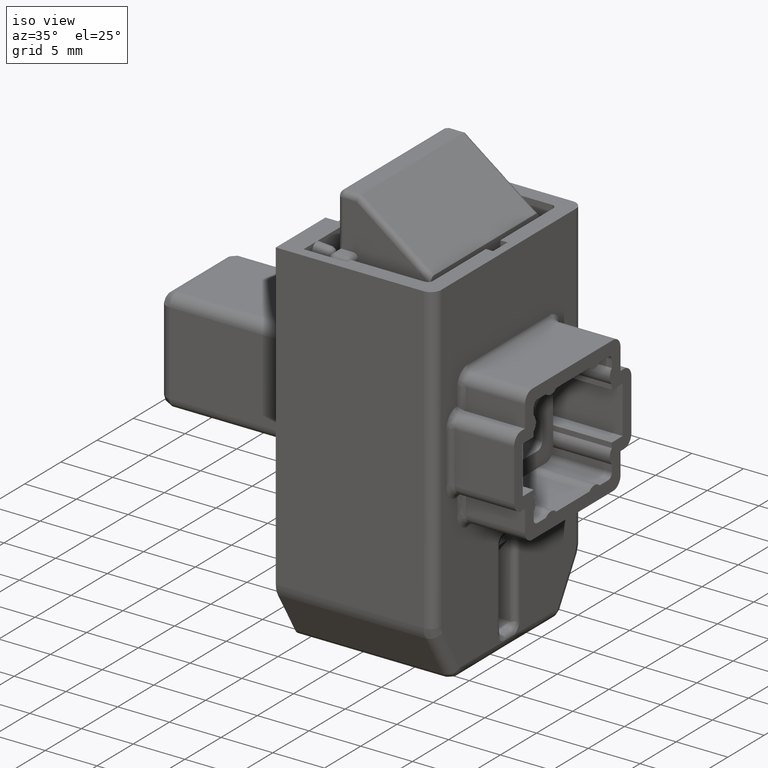
[diagram: clean part render]
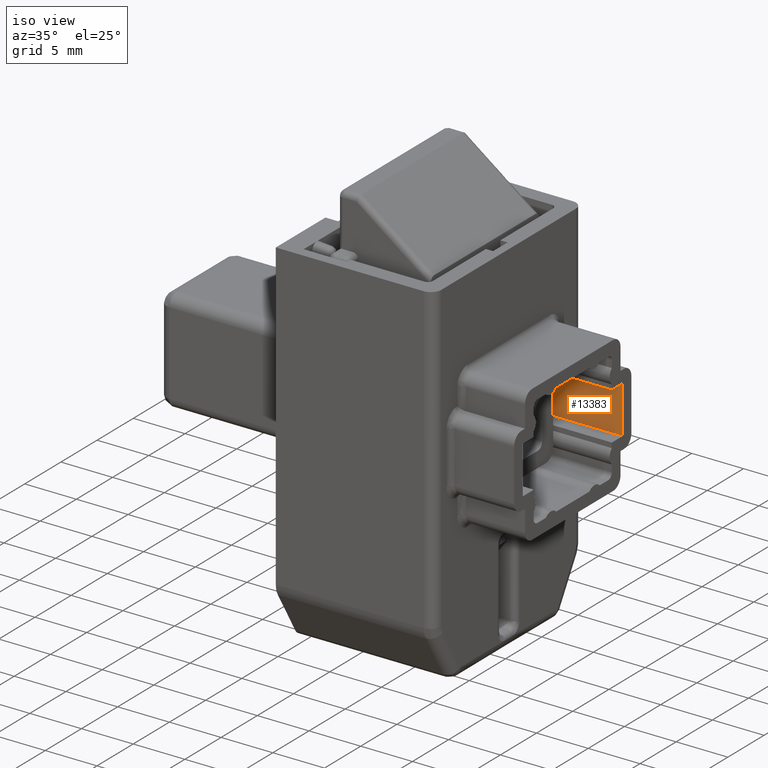
[diagram: same view with one face highlighted and labeled with its STEP entity id]
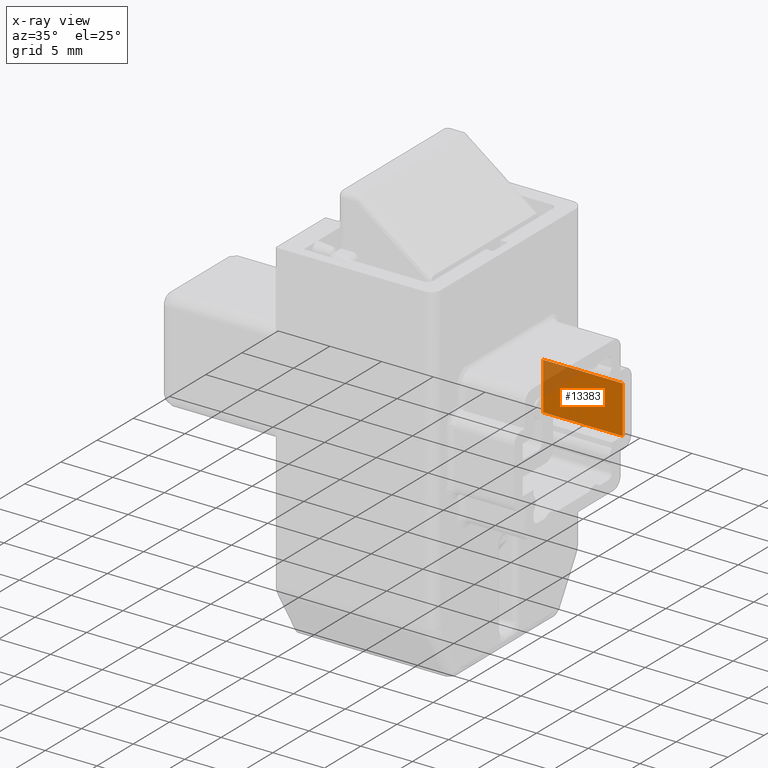
[diagram: x-ray of the same camera — body ghosted, the highlighted face saturated]
A machine part, iso view. The second image highlights one B-rep face of the part: STEP entity #13383.
The next image is the same camera in x-ray: the body ghosted, the highlighted face saturated — about 18% of this face is hidden behind the body in this view.
In plain terms, the highlighted face is a freeform B-spline surface patch.
Its self-contained STEP definition (entity closure, byte-faithful):
#13333=CARTESIAN_POINT('',(13.799999000000060,6.900002000000000,-2.299998999999895));
#13334=VERTEX_POINT('',#13333);
#13341=CARTESIAN_POINT('',(21.500000000000000,6.900002000000000,-2.299998999999895));
#13342=VERTEX_POINT('',#13341);
#13348=CARTESIAN_POINT('',(21.500000000000000,6.900002000000000,-2.299998999999895));
#13349=CARTESIAN_POINT('',(13.799999000000060,6.900002000000000,-2.299998999999895));
#13350=QUASI_UNIFORM_CURVE('',1,(#13348,#13349),.UNSPECIFIED.,.F.,.U.);
#13351=EDGE_CURVE('',#13342,#13334,#13350,.T.);
#13356=CARTESIAN_POINT('',(13.415384181820460,6.900002000000001,2.529769897953004));
#13357=CARTESIAN_POINT('',(13.415384181820460,6.900002000000001,-2.529769062461493));
#13358=CARTESIAN_POINT('',(21.884615231239842,6.900002000000000,2.529769897953004));
#13359=CARTESIAN_POINT('',(21.884615231239842,6.900002000000000,-2.529769062461493));
#13360=B_SPLINE_SURFACE_WITH_KNOTS('',1,1,((#13356,#13358),(#13357,#13359)),.UNSPECIFIED.,.F.,.F.,.U.,(2,2),(2,2),(0.0,5.059538960414498),(0.0,8.469231049419383),.UNSPECIFIED.);
#13361=CARTESIAN_POINT('',(13.799999000000060,6.900002000000000,2.300000000000190));
#13362=VERTEX_POINT('',#13361);
#13363=CARTESIAN_POINT('',(13.799999000000060,6.900002000000000,2.300000000000190));
#13364=CARTESIAN_POINT('',(13.799999000000060,6.900002000000000,-2.299998999999895));
#13365=QUASI_UNIFORM_CURVE('',1,(#13363,#13364),.UNSPECIFIED.,.F.,.U.);
#13366=EDGE_CURVE('',#13362,#13334,#13365,.T.);
#13367=ORIENTED_EDGE('',*,*,#13366,.T.);
#13368=ORIENTED_EDGE('',*,*,#13351,.F.);
#13369=CARTESIAN_POINT('',(21.500000000000000,6.900002000000000,2.300000000000190));
#13370=VERTEX_POINT('',#13369);
#13371=CARTESIAN_POINT('',(21.500000000000000,6.900002000000000,-2.299998999999895));
#13372=CARTESIAN_POINT('',(21.500000000000000,6.900002000000000,2.300000000000190));
#13373=QUASI_UNIFORM_CURVE('',1,(#13371,#13372),.UNSPECIFIED.,.F.,.U.);
#13374=EDGE_CURVE('',#13342,#13370,#13373,.T.);
#13375=ORIENTED_EDGE('',*,*,#13374,.T.);
#13376=CARTESIAN_POINT('',(21.500000000000000,6.900002000000000,2.300000000000190));
#13377=CARTESIAN_POINT('',(13.799999000000060,6.900002000000000,2.300000000000190));
#13378=QUASI_UNIFORM_CURVE('',1,(#13376,#13377),.UNSPECIFIED.,.F.,.U.);
#13379=EDGE_CURVE('',#13370,#13362,#13378,.T.);
#13380=ORIENTED_EDGE('',*,*,#13379,.T.);
#13381=EDGE_LOOP('',(#13367,#13368,#13375,#13380));
#13382=FACE_OUTER_BOUND('',#13381,.T.);
#13383=ADVANCED_FACE('',(#13382),#13360,.T.);